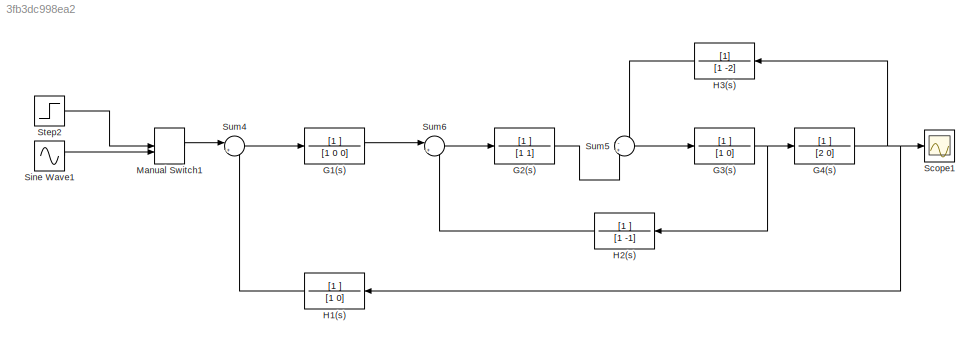
MODEL slx_3fb3dc998ea2
KIND model
CONFIG AbsTol = auto
CONFIG EnableMultiTasking = off
CONFIG FixedStep = auto
CONFIG MaxStep = auto
CONFIG MinStep = auto
CONFIG RelTol = 1e-3
CONFIG SampleTimeConstraint = Unconstrained
CONFIG SolverName = VariableStepAuto
CONFIG StartTime = 0.0
CONFIG StopTime = 10.0
BLOCK [TransferFcn] G1(s)
  Denominator = [1 0 0]
  Numerator = [1 ]
BLOCK [TransferFcn] G2(s)
  Denominator = [1 1]
  Numerator = [1 ]
BLOCK [TransferFcn] G3(s)
  Denominator = [1 0]
  Numerator = [1 ]
BLOCK [TransferFcn] G4(s)
  Denominator = [2 0]
  Numerator = [1 ]
BLOCK [TransferFcn] H1(s)
  Denominator = [1 0]
  Numerator = [1 ]
BLOCK [TransferFcn] H2(s)
  Denominator = [1 -1]
  Numerator = [1 ]
BLOCK [TransferFcn] H3(s)
  Denominator = [1 -2]
BLOCK [ManualSwitch] Manual Switch1
  CurrentSetting = 0
BLOCK [Scope] Scope1
  Floating = off
  NumInputPorts = 1
  ScopeSpecificationString = Simulink.scopes.TimeScopeBlockCfg('CurrentConfiguration', extmgr.ConfigurationSet(extmgr.Configuration('Core','General UI',true),extmgr.Configuration('Core','Source UI',true),extmgr.Configuration('Sources','WiredSimulink',true),extmgr.Configuration('Visuals','Time Domain',true,'SerializedDisplays',{struct('MinYLimReal','-54152.42356','MaxYLimReal','6017.7448','YLabelReal','','MinYLimMag','   0.000...<+1408ch>
BLOCK [Sin] Sine Wave1
  SampleTime = 0
BLOCK [Step] Step2
  SampleTime = 0
BLOCK [Sum] Sum4
  Inputs = |+-
BLOCK [Sum] Sum5
  Inputs = -+
BLOCK [Sum] Sum6
  Inputs = |+-
LINE G1(s):1 -> Sum6:1
LINE G2(s):1 -> Sum5:2
NET G3(s):1 -> G4(s):1, H2(s):1
NET G4(s):1 -> H1(s):1, H3(s):1, Scope1:1
LINE H1(s):1 -> Sum4:2
LINE H2(s):1 -> Sum6:2
LINE H3(s):1 -> Sum5:1
LINE Manual Switch1:1 -> Sum4:1
LINE Sine Wave1:1 -> Manual Switch1:2
LINE Step2:1 -> Manual Switch1:1
LINE Sum4:1 -> G1(s):1
LINE Sum5:1 -> G3(s):1
LINE Sum6:1 -> G2(s):1
note: NET lines group one-source signal fan-out (src -> all destinations, sorted); 1:1 wires keep LINE
